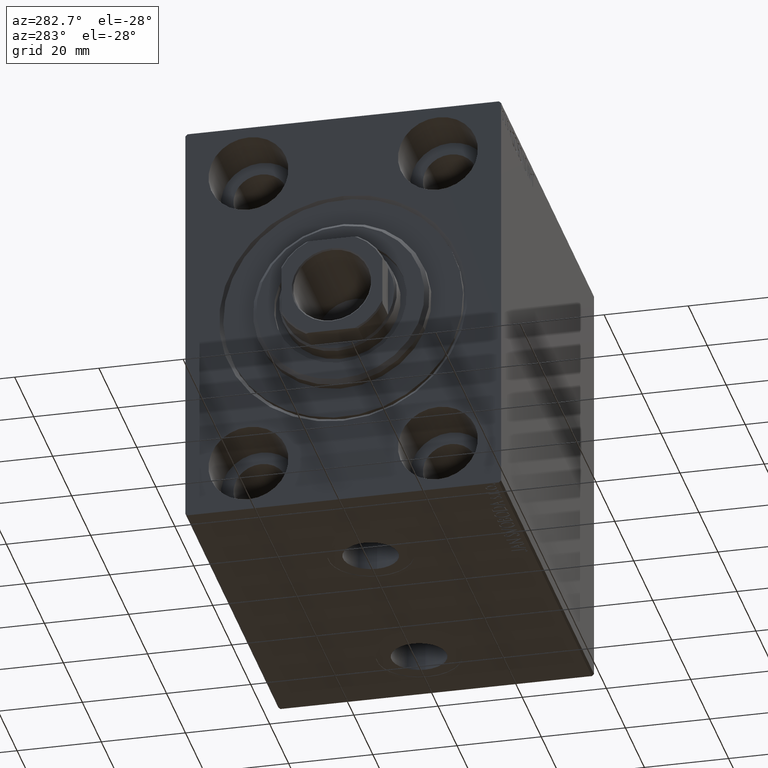
[diagram: clean part render]
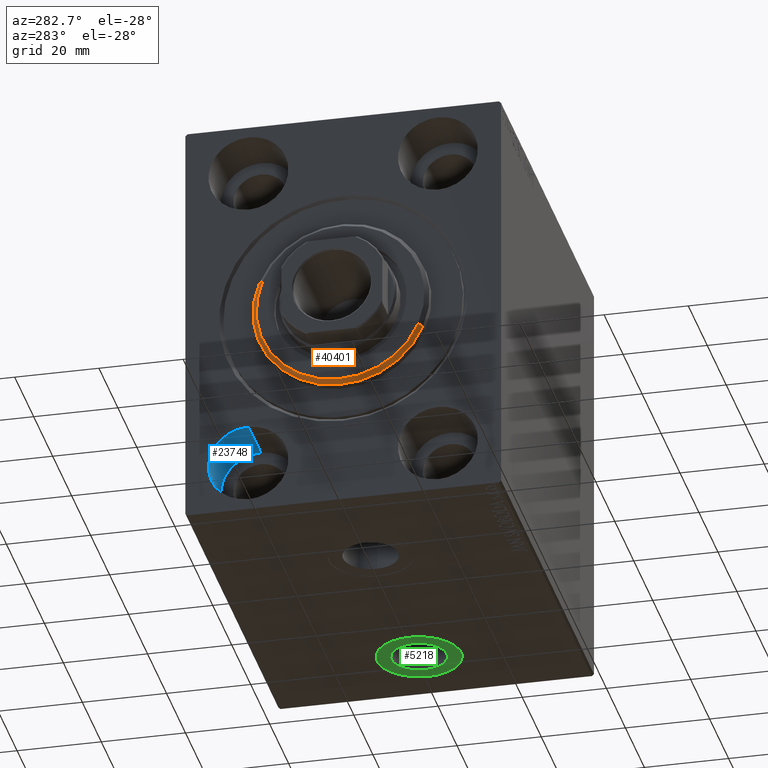
[diagram: same view with three faces highlighted in distinct colors, each labeled with its STEP entity id]
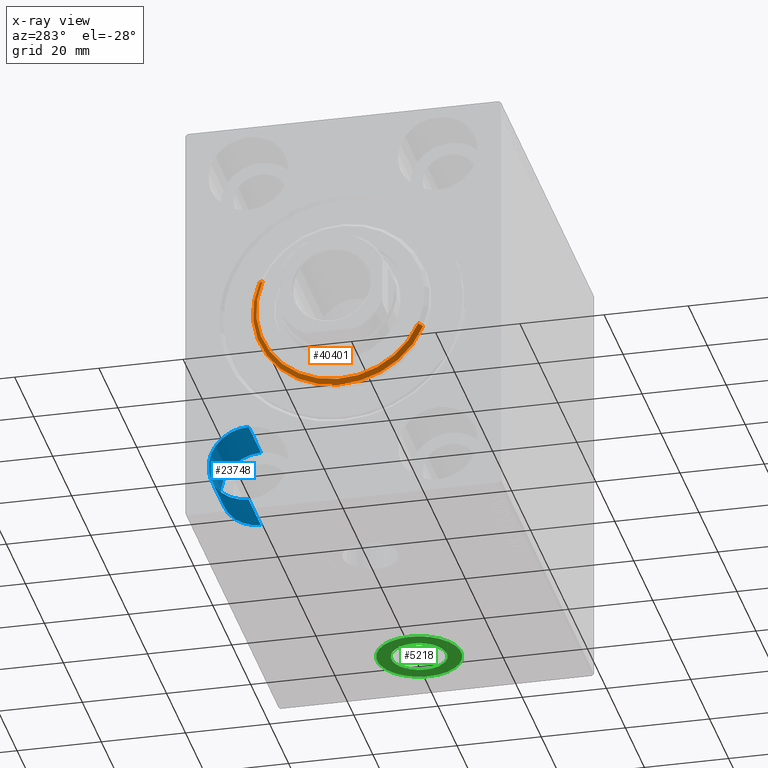
[diagram: x-ray of the same camera — body ghosted, the three highlighted faces saturated]
A machine part, auxiliary view with three faces highlighted in distinct colors.
The next image is the same camera in x-ray (body ghosted, the three faces saturated) — at least one of them is partly hidden behind the body in this view.
Their STEP definitions:

[orange] entity #40401 — the highlighted conical surface has half-angle 45 deg.
#1130 = DIRECTION ( 'NONE',  ( 0.000000000000000000, 0.000000000000000000, 1.000000000000000000 ) ) ;
#1475 = CIRCLE ( 'NONE', #40977, 19.99999999999999645 ) ;
#2792 = AXIS2_PLACEMENT_3D ( 'NONE', #40071, #13652, #41170 ) ;
#2887 = CONICAL_SURFACE ( 'NONE', #27042, 19.99999999999999645, 0.7853981633974482790 ) ;
#5514 = VERTEX_POINT ( 'NONE', #31874 ) ;
#5980 = LINE ( 'NONE', #23854, #39166 ) ;
#6641 = CARTESIAN_POINT ( 'NONE',  ( 3.000000000000000000, 0.000000000000000000, 0.000000000000000000 ) ) ;
#9345 = ORIENTED_EDGE ( 'NONE', *, *, #12074, .F. ) ;
#10987 = CARTESIAN_POINT ( 'NONE',  ( 3.000000000000000000, 0.000000000000000000, 0.000000000000000000 ) ) ;
#12074 = EDGE_CURVE ( 'NONE', #17579, #20566, #1475, .T. ) ;
#13652 = DIRECTION ( 'NONE',  ( -1.000000000000000000, 0.000000000000000000, 0.000000000000000000 ) ) ;
#14412 = FACE_OUTER_BOUND ( 'NONE', #44024, .T. ) ;
#15031 = CARTESIAN_POINT ( 'NONE',  ( 3.000000000000000000, 0.000000000000000000, 19.99999999999999645 ) ) ;
#16757 = VECTOR ( 'NONE', #31615, 1000.000000000000114 ) ;
#17386 = CARTESIAN_POINT ( 'NONE',  ( 3.000000000000000000, 2.449293598294706119E-15, -19.99999999999999645 ) ) ;
#17392 = DIRECTION ( 'NONE',  ( 1.000000000000000000, -0.000000000000000000, 0.000000000000000000 ) ) ;
#17579 = VERTEX_POINT ( 'NONE', #33666 ) ;
#18753 = EDGE_CURVE ( 'NONE', #20566, #5514, #5980, .T. ) ;
#20566 = VERTEX_POINT ( 'NONE', #15031 ) ;
#23161 = ORIENTED_EDGE ( 'NONE', *, *, #18753, .F. ) ;
#23854 = CARTESIAN_POINT ( 'NONE',  ( 3.000000000000000000, 0.000000000000000000, 19.99999999999999645 ) ) ;
#24981 = DIRECTION ( 'NONE',  ( -1.000000000000000000, 0.000000000000000000, 0.000000000000000000 ) ) ;
#25430 = CARTESIAN_POINT ( 'NONE',  ( 1.999999999999995781, 2.571758278209441661E-15, -21.00000000000000000 ) ) ;
#27042 = AXIS2_PLACEMENT_3D ( 'NONE', #10987, #24981, #1130 ) ;
#30716 = DIRECTION ( 'NONE',  ( 0.000000000000000000, 0.000000000000000000, -1.000000000000000000 ) ) ;
#31615 = DIRECTION ( 'NONE',  ( -0.7071067811865474617, 8.659560562354932858E-17, -0.7071067811865474617 ) ) ;
#31874 = CARTESIAN_POINT ( 'NONE',  ( 1.999999999999995781, 0.000000000000000000, 21.00000000000000000 ) ) ;
#32933 = CIRCLE ( 'NONE', #2792, 21.00000000000000000 ) ;
#33497 = ORIENTED_EDGE ( 'NONE', *, *, #39358, .T. ) ;
#33666 = CARTESIAN_POINT ( 'NONE',  ( 3.000000000000000000, 2.510525938252074087E-15, -19.99999999999999645 ) ) ;
#33952 = DIRECTION ( 'NONE',  ( -0.7071067811865474617, 0.000000000000000000, 0.7071067811865474617 ) ) ;
#34821 = LINE ( 'NONE', #17386, #16757 ) ;
#36704 = EDGE_CURVE ( 'NONE', #5514, #42720, #32933, .T. ) ;
#39166 = VECTOR ( 'NONE', #33952, 1000.000000000000114 ) ;
#39358 = EDGE_CURVE ( 'NONE', #17579, #42720, #34821, .T. ) ;
#40071 = CARTESIAN_POINT ( 'NONE',  ( 1.999999999999995781, 0.000000000000000000, 0.000000000000000000 ) ) ;
#40401 = ADVANCED_FACE ( 'NONE', ( #14412 ), #2887, .T. ) ;
#40977 = AXIS2_PLACEMENT_3D ( 'NONE', #6641, #17392, #30716 ) ;
#41170 = DIRECTION ( 'NONE',  ( 0.000000000000000000, 0.000000000000000000, -1.000000000000000000 ) ) ;
#42154 = ORIENTED_EDGE ( 'NONE', *, *, #36704, .F. ) ;
#42720 = VERTEX_POINT ( 'NONE', #25430 ) ;
#44024 = EDGE_LOOP ( 'NONE', ( #9345, #33497, #42154, #23161 ) ) ;

[blue] entity #23748 — the highlighted cylindrical surface (partial cylindrical patch) has radius 9.5 mm, axis along (-1, -0, -0).
#644 = DIRECTION ( 'NONE',  ( 0.000000000000000000, 0.000000000000000000, 1.000000000000000000 ) ) ;
#780 = LINE ( 'NONE', #14524, #29968 ) ;
#1492 = DIRECTION ( 'NONE',  ( -1.000000000000000000, 0.000000000000000000, 0.000000000000000000 ) ) ;
#1502 = AXIS2_PLACEMENT_3D ( 'NONE', #43434, #1492, #39782 ) ;
#3519 = CARTESIAN_POINT ( 'NONE',  ( 0.000000000000000000, 22.49999999999999645, -28.49999999999998934 ) ) ;
#3704 = EDGE_CURVE ( 'NONE', #6369, #4967, #29876, .T. ) ;
#4967 = VERTEX_POINT ( 'NONE', #20036 ) ;
#6369 = VERTEX_POINT ( 'NONE', #21153 ) ;
#6840 = CARTESIAN_POINT ( 'NONE',  ( 0.000000000000000000, 22.49999999999999645, -47.49999999999999289 ) ) ;
#7145 = CYLINDRICAL_SURFACE ( 'NONE', #16472, 9.500000000000001776 ) ;
#7385 = DIRECTION ( 'NONE',  ( -1.000000000000000000, -0.000000000000000000, -0.000000000000000000 ) ) ;
#7741 = EDGE_CURVE ( 'NONE', #6369, #21574, #31467, .T. ) ;
#7841 = CARTESIAN_POINT ( 'NONE',  ( 13.00000000000000000, 22.49999999999999645, -37.99999999999999289 ) ) ;
#14524 = CARTESIAN_POINT ( 'NONE',  ( 13.00000000000000000, 22.49999999999999645, -47.49999999999999289 ) ) ;
#16472 = AXIS2_PLACEMENT_3D ( 'NONE', #7841, #7385, #28472 ) ;
#16856 = CIRCLE ( 'NONE', #1502, 9.500000000000001776 ) ;
#20036 = CARTESIAN_POINT ( 'NONE',  ( 13.00000000000000000, 22.49999999999999645, -47.49999999999999289 ) ) ;
#20498 = ORIENTED_EDGE ( 'NONE', *, *, #7741, .T. ) ;
#20907 = CARTESIAN_POINT ( 'NONE',  ( 13.00000000000000000, 22.49999999999999645, -28.49999999999998934 ) ) ;
#21153 = CARTESIAN_POINT ( 'NONE',  ( 13.00000000000000000, 22.49999999999999645, -28.49999999999998934 ) ) ;
#21574 = VERTEX_POINT ( 'NONE', #3519 ) ;
#21820 = FACE_OUTER_BOUND ( 'NONE', #43250, .T. ) ;
#22333 = DIRECTION ( 'NONE',  ( -1.000000000000000000, -0.000000000000000000, -0.000000000000000000 ) ) ;
#23748 = ADVANCED_FACE ( 'NONE', ( #21820 ), #7145, .F. ) ;
#26016 = VERTEX_POINT ( 'NONE', #6840 ) ;
#26349 = VECTOR ( 'NONE', #34234, 1000.000000000000000 ) ;
#26515 = ORIENTED_EDGE ( 'NONE', *, *, #43310, .T. ) ;
#28472 = DIRECTION ( 'NONE',  ( 0.000000000000000000, 0.000000000000000000, 1.000000000000000000 ) ) ;
#29876 = CIRCLE ( 'NONE', #35732, 9.500000000000001776 ) ;
#29968 = VECTOR ( 'NONE', #22333, 1000.000000000000000 ) ;
#31234 = ORIENTED_EDGE ( 'NONE', *, *, #39823, .F. ) ;
#31467 = LINE ( 'NONE', #20907, #26349 ) ;
#34234 = DIRECTION ( 'NONE',  ( -1.000000000000000000, -0.000000000000000000, -0.000000000000000000 ) ) ;
#35732 = AXIS2_PLACEMENT_3D ( 'NONE', #43288, #39383, #644 ) ;
#36774 = ORIENTED_EDGE ( 'NONE', *, *, #3704, .F. ) ;
#39383 = DIRECTION ( 'NONE',  ( -1.000000000000000000, 0.000000000000000000, 0.000000000000000000 ) ) ;
#39782 = DIRECTION ( 'NONE',  ( 0.000000000000000000, 0.000000000000000000, 1.000000000000000000 ) ) ;
#39823 = EDGE_CURVE ( 'NONE', #4967, #26016, #780, .T. ) ;
#43250 = EDGE_LOOP ( 'NONE', ( #31234, #36774, #20498, #26515 ) ) ;
#43288 = CARTESIAN_POINT ( 'NONE',  ( 13.00000000000000000, 22.49999999999999645, -37.99999999999999289 ) ) ;
#43310 = EDGE_CURVE ( 'NONE', #21574, #26016, #16856, .T. ) ;
#43434 = CARTESIAN_POINT ( 'NONE',  ( 0.000000000000000000, 22.49999999999999645, -37.99999999999999289 ) ) ;

[green] entity #5218 — the highlighted planar face has unit normal (0, 0, -1).
#700 = CARTESIAN_POINT ( 'NONE',  ( 70.00000000000001421, -1.162673940005814199E-15, -49.89999999999999858 ) ) ;
#1099 = ORIENTED_EDGE ( 'NONE', *, *, #45305, .F. ) ;
#1640 = VERTEX_POINT ( 'NONE', #24519 ) ;
#4995 = CARTESIAN_POINT ( 'NONE',  ( 80.00000000000001421, -1.162673940005814199E-15, -49.89999999999999858 ) ) ;
#5218 = ADVANCED_FACE ( 'NONE', ( #11289, #35365 ), #32397, .T. ) ;
#6112 = AXIS2_PLACEMENT_3D ( 'NONE', #9793, #6583, #16661 ) ;
#6583 = DIRECTION ( 'NONE',  ( 0.000000000000000000, 0.000000000000000000, -1.000000000000000000 ) ) ;
#6903 = CARTESIAN_POINT ( 'NONE',  ( 80.00000000000001421, -1.162673940005814199E-15, -49.89999999999999858 ) ) ;
#9793 = CARTESIAN_POINT ( 'NONE',  ( 80.00000000000001421, -1.162673940005814199E-15, -49.89999999999999858 ) ) ;
#10003 = EDGE_CURVE ( 'NONE', #23770, #19894, #19082, .T. ) ;
#11081 = AXIS2_PLACEMENT_3D ( 'NONE', #6903, #13094, #20872 ) ;
#11289 = FACE_BOUND ( 'NONE', #33400, .T. ) ;
#13094 = DIRECTION ( 'NONE',  ( 0.000000000000000000, 0.000000000000000000, -1.000000000000000000 ) ) ;
#14255 = DIRECTION ( 'NONE',  ( 0.000000000000000000, 0.000000000000000000, -1.000000000000000000 ) ) ;
#15658 = DIRECTION ( 'NONE',  ( 0.000000000000000000, 0.000000000000000000, -1.000000000000000000 ) ) ;
#16661 = DIRECTION ( 'NONE',  ( -1.000000000000000000, 0.000000000000000000, 0.000000000000000000 ) ) ;
#16808 = EDGE_CURVE ( 'NONE', #20962, #1640, #17826, .T. ) ;
#17826 = CIRCLE ( 'NONE', #6112, 6.580000000000002736 ) ;
#18713 = ORIENTED_EDGE ( 'NONE', *, *, #21739, .T. ) ;
#19082 = CIRCLE ( 'NONE', #44664, 9.999999999999994671 ) ;
#19697 = CARTESIAN_POINT ( 'NONE',  ( 86.58000000000001251, -3.568563461668557485E-16, -49.89999999999999858 ) ) ;
#19894 = VERTEX_POINT ( 'NONE', #700 ) ;
#20872 = DIRECTION ( 'NONE',  ( -1.000000000000000000, 0.000000000000000000, 0.000000000000000000 ) ) ;
#20962 = VERTEX_POINT ( 'NONE', #19697 ) ;
#21739 = EDGE_CURVE ( 'NONE', #19894, #23770, #42020, .T. ) ;
#23712 = AXIS2_PLACEMENT_3D ( 'NONE', #26645, #15658, #44059 ) ;
#23770 = VERTEX_POINT ( 'NONE', #28937 ) ;
#24519 = CARTESIAN_POINT ( 'NONE',  ( 73.42000000000001592, -1.162673940005814199E-15, -49.89999999999999858 ) ) ;
#26288 = AXIS2_PLACEMENT_3D ( 'NONE', #35593, #14255, #28250 ) ;
#26645 = CARTESIAN_POINT ( 'NONE',  ( 80.00000000000001421, -1.162673940005814199E-15, -49.89999999999999858 ) ) ;
#28250 = DIRECTION ( 'NONE',  ( -1.000000000000000000, 0.000000000000000000, -0.000000000000000000 ) ) ;
#28937 = CARTESIAN_POINT ( 'NONE',  ( 90.00000000000001421, 6.197285914153835515E-17, -49.89999999999999858 ) ) ;
#29395 = CIRCLE ( 'NONE', #11081, 6.580000000000002736 ) ;
#29932 = ORIENTED_EDGE ( 'NONE', *, *, #16808, .F. ) ;
#29961 = DIRECTION ( 'NONE',  ( -1.000000000000000000, 0.000000000000000000, 0.000000000000000000 ) ) ;
#32397 = PLANE ( 'NONE',  #26288 ) ;
#33400 = EDGE_LOOP ( 'NONE', ( #1099, #29932 ) ) ;
#33622 = DIRECTION ( 'NONE',  ( 0.000000000000000000, 0.000000000000000000, -1.000000000000000000 ) ) ;
#35365 = FACE_OUTER_BOUND ( 'NONE', #38723, .T. ) ;
#35593 = CARTESIAN_POINT ( 'NONE',  ( 80.00000000000001421, -1.162673940005814199E-15, -49.89999999999999858 ) ) ;
#36536 = ORIENTED_EDGE ( 'NONE', *, *, #10003, .T. ) ;
#38723 = EDGE_LOOP ( 'NONE', ( #18713, #36536 ) ) ;
#42020 = CIRCLE ( 'NONE', #23712, 9.999999999999994671 ) ;
#44059 = DIRECTION ( 'NONE',  ( -1.000000000000000000, 0.000000000000000000, 0.000000000000000000 ) ) ;
#44664 = AXIS2_PLACEMENT_3D ( 'NONE', #4995, #33622, #29961 ) ;
#45305 = EDGE_CURVE ( 'NONE', #1640, #20962, #29395, .T. ) ;